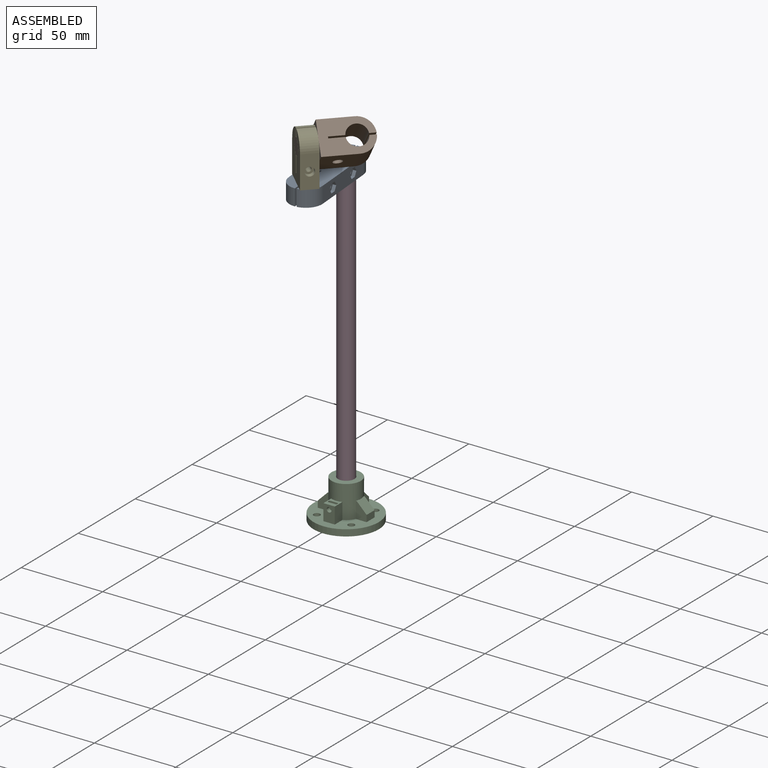
[diagram: assembled view]
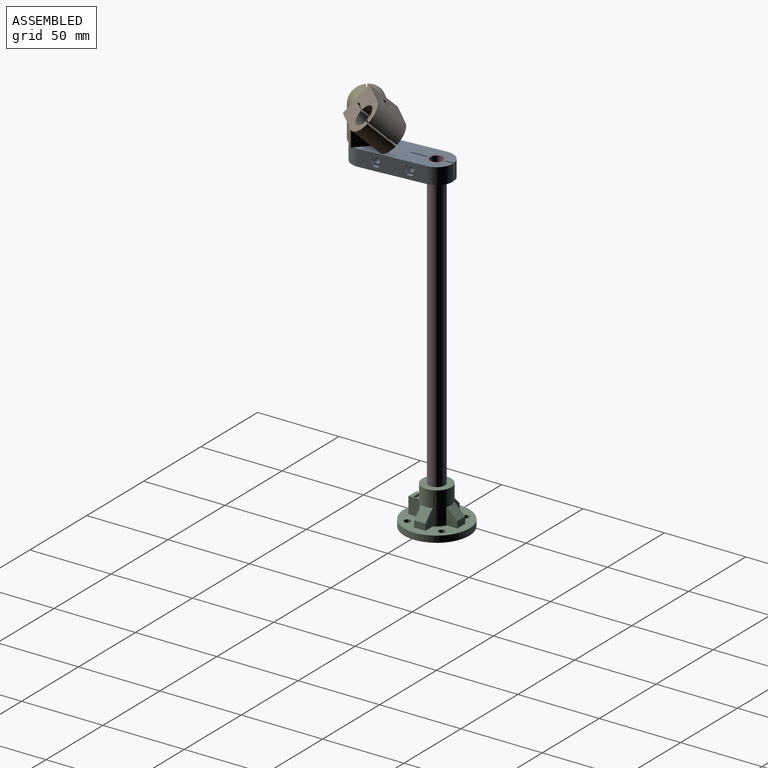
[diagram: assembled view, second angle]
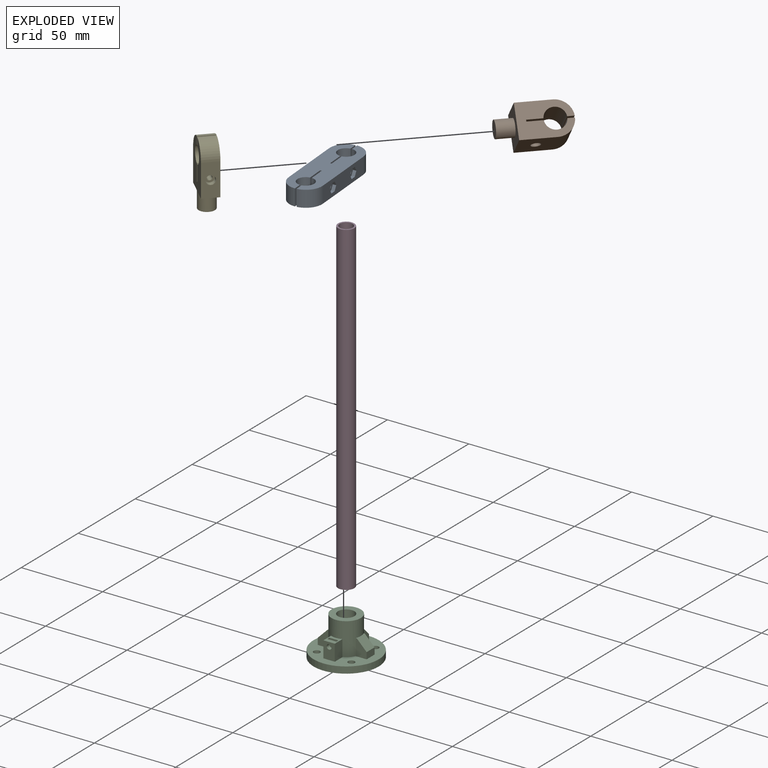
[diagram: exploded view]
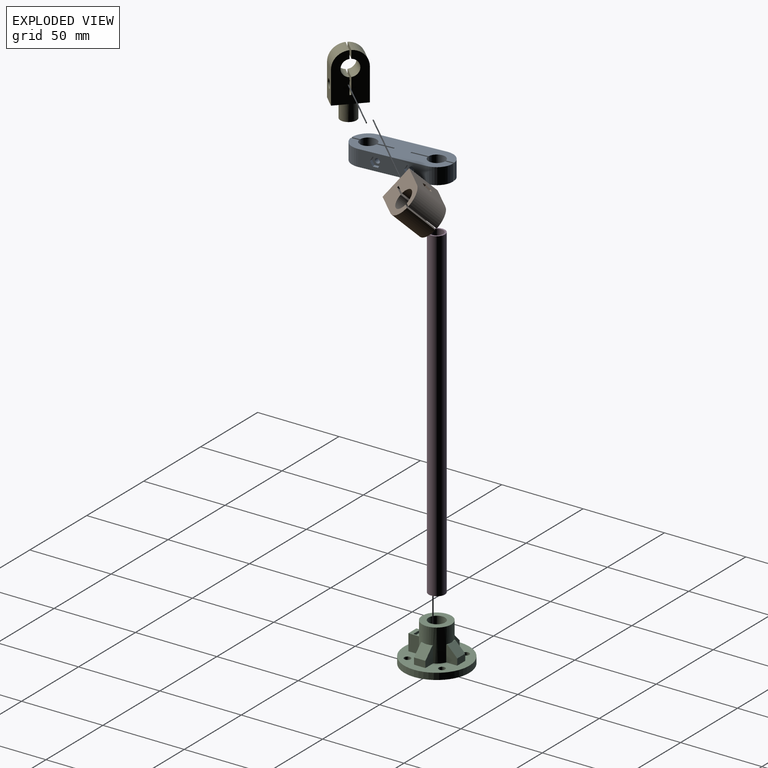
[diagram: exploded view, second angle]
ASSEMBLY  parts=5 mates=4
PART A: 44 faces, bbox 20x60x10 mm
  f0: plane 40x10mm, normal (-1,0,0), area 347.6mm2, adj f3,f9,f10,f14,f30,f31,f32,f33
  f1: cylinder r=1.5mm len=7.5mm, axis (1,0,0), area 70.7mm2, adj f21,f43
  f2: cylinder r=1.5mm len=7.56mm, axis (1,0,0), area 71.3mm2, adj f18,f36
  f3: cylinder r=10mm len=10mm, axis (0,0,-1), area 152.1mm2, adj f0,f9,f10,f24
  f4: cylinder r=10mm len=10mm, axis (0,0,-1), area 152.1mm2, adj f9,f10,f15,f23
  f5: cylinder r=5.1mm len=10.15mm, axis (0,0,-1), area 150.2mm2, adj f9,f10,f21,f24
  f6: cylinder r=5.1mm len=10.15mm, axis (0,0,-1), area 150.2mm2, adj f9,f10,f20,f25
  f7: cylinder r=5.1mm len=10.15mm, axis (0,0,-1), area 150.2mm2, adj f9,f10,f17,f23
  f8: cylinder r=5.1mm len=10.16mm, axis (0,0,-1), area 151.4mm2, adj f9,f10,f18,f22
  f9: plane 59.98x20mm, normal (0,0,1), area 921.8mm2, adj f0,f3,f4,f5,f6,f7,f8,f13
  f10: plane 59.98x20mm, normal (0,0,-1), area 921.8mm2, adj f0,f3,f4,f5,f6,f7,f8,f13
  f11: cylinder r=1.5mm len=6.5mm, axis (1,0,0), area 61.3mm2, adj f20,f27
  f12: cylinder r=1.5mm len=6.5mm, axis (1,0,0), area 61.3mm2, adj f17,f29
  f13: cylinder r=10mm len=10mm, axis (0,0,-1), area 152.1mm2, adj f9,f10,f15,f25
  f14: cylinder r=10mm len=10mm, axis (0,0,-1), area 152.7mm2, adj f0,f9,f10,f22
  f15: plane 40x10mm, normal (1,0,0), area 352.5mm2, adj f4,f9,f10,f13,f26,f28
  f16: plane 10x0.94mm, normal (0,-1,0), area 9.4mm2, adj f9,f10,f17,f18
  f17: plane 10.02x10mm, normal (-1,0,0), area 93.2mm2, adj f7,f9,f10,f12,f16
  f18: plane 10.02x10mm, normal (1,0,0), area 93.1mm2, adj f2,f8,f9,f10,f16
  f19: plane 10x1mm, normal (0,1,0), area 10mm2, adj f9,f10,f20,f21
  f20: plane 10.02x10mm, normal (-1,0,0), area 93.2mm2, adj f6,f9,f10,f11,f19
  f21: plane 10.02x10mm, normal (1,0,0), area 93.2mm2, adj f1,f5,f9,f10,f19
  f22: plane 10x4.91mm, normal (1,0,0), area 49.1mm2, adj f8,f9,f10,f14
  f23: plane 10x4.91mm, normal (-1,0,0), area 49.1mm2, adj f4,f7,f9,f10
  f24: plane 10x4.91mm, normal (1,0,0), area 49.1mm2, adj f3,f5,f9,f10
  f25: plane 10x4.91mm, normal (-1,0,0), area 49.1mm2, adj f6,f9,f10,f13
  f26: cylinder r=2.75mm len=5.5mm, axis (1,0,0), area 51.8mm2, adj f15,f27
  f27: plane 5.5x5.5mm, normal (1,0,0), area 16.7mm2, adj f11,f26
  f28: cylinder r=2.75mm len=5.5mm, axis (1,0,0), area 51.8mm2, adj f15,f29
  f29: plane 5.5x5.5mm, normal (1,0,0), area 16.7mm2, adj f12,f28
  f30: plane 2.75x2mm, normal (0,0.87,0.5), area 6.4mm2, adj f0,f31,f35,f36
  f31: plane 2.75x2mm, normal (0,0.87,-0.5), area 6.4mm2, adj f0,f30,f32,f36
  f32: plane 3.18x2mm, normal (0,0,-1), area 6.4mm2, adj f0,f31,f33,f36
  f33: plane 2.75x2mm, normal (0,-0.87,-0.5), area 6.4mm2, adj f0,f32,f34,f36
  f34: plane 2.75x2mm, normal (0,-0.87,0.5), area 6.4mm2, adj f0,f33,f35,f36
  f35: plane 3.18x2mm, normal (0,0,1), area 6.4mm2, adj f0,f30,f34,f36
  f36: plane 6.35x5.5mm, normal (-1,0,0), area 19.1mm2, adj f2,f30,f31,f32,f33,f34,f35
  f37: plane 2.75x2mm, normal (0,0.87,0.5), area 6.4mm2, adj f0,f38,f42,f43
  f38: plane 2.75x2mm, normal (0,0.87,-0.5), area 6.4mm2, adj f0,f37,f39,f43
  f39: plane 3.18x2mm, normal (0,0,-1), area 6.4mm2, adj f0,f38,f40,f43
  f40: plane 2.75x2mm, normal (0,-0.87,-0.5), area 6.4mm2, adj f0,f39,f41,f43
  f41: plane 2.75x2mm, normal (0,-0.87,0.5), area 6.4mm2, adj f0,f40,f42,f43
  f42: plane 3.18x2mm, normal (0,0,1), area 6.4mm2, adj f0,f37,f41,f43
  f43: plane 6.35x5.5mm, normal (-1,0,0), area 19.1mm2, adj f1,f37,f38,f39,f40,f41,f42
PART B: 27 faces, bbox 40x20x20 mm
  f0: plane 20x20mm, normal (0,0,-1), area 373.8mm2, adj f5,f6,f8,f9,f20,f21,f22,f23
  f1: cylinder r=10mm len=20mm, axis (0,1,0), area 304.2mm2, adj f4,f8,f9,f14
  f2: cylinder r=6.1mm len=20mm, axis (0,1,0), area 363.3mm2, adj f8,f9,f12,f14
  f3: cylinder r=1.5mm len=6.5mm, axis (0,0,1), area 61.3mm2, adj f12,f19
  f4: plane 20x20mm, normal (0,0,1), area 376.2mm2, adj f1,f6,f8,f9,f18
  f5: cylinder r=10mm len=20mm, axis (0,1,0), area 304.2mm2, adj f0,f8,f9,f15
  f6: plane 20x20mm, normal (1,0,0), area 321.5mm2, adj f0,f4,f8,f9,f16
  f7: cylinder r=6.1mm len=20mm, axis (0,1,0), area 363.3mm2, adj f8,f9,f11,f15
  f8: plane 29.99x20mm, normal (0,-1,0), area 427.4mm2, adj f0,f1,f2,f4,f5,f6,f7,f11
  f9: plane 29.99x20mm, normal (0,1,0), area 427.4mm2, adj f0,f1,f2,f4,f5,f6,f7,f11
  f10: cylinder r=1.5mm len=7.5mm, axis (0,0,1), area 70.7mm2, adj f11,f26
  f11: plane 20x8.92mm, normal (0,0,1), area 171.3mm2, adj f7,f8,f9,f10,f13
  f12: plane 20x8.92mm, normal (0,0,-1), area 171.3mm2, adj f2,f3,f8,f9,f13
  f13: plane 20x1mm, normal (-1,0,0), area 20mm2, adj f8,f9,f11,f12
  f14: plane 20x3.91mm, normal (0,0,-1), area 78.2mm2, adj f1,f2,f8,f9
  f15: plane 20x3.91mm, normal (0,0,1), area 78.2mm2, adj f5,f7,f8,f9
  f16: cylinder r=5mm len=10mm, axis (-1,0,0), area 314.2mm2, adj f6,f17
  f17: plane 10x10mm, normal (1,0,0), area 78.5mm2, adj f16
  f18: cylinder r=2.75mm len=5.5mm, axis (0,0,1), area 51.8mm2, adj f4,f19
  f19: plane 5.5x5.5mm, normal (0,0,1), area 16.7mm2, adj f3,f18
  f20: plane 2.75x2mm, normal (0.87,0.5,0), area 6.4mm2, adj f0,f21,f25,f26
  f21: plane 2.75x2mm, normal (0.87,-0.5,0), area 6.4mm2, adj f0,f20,f22,f26
  f22: plane 3.18x2mm, normal (0,-1,0), area 6.4mm2, adj f0,f21,f23,f26
  f23: plane 2.75x2mm, normal (-0.87,-0.5,0), area 6.4mm2, adj f0,f22,f24,f26
  f24: plane 2.75x2mm, normal (-0.87,0.5,0), area 6.4mm2, adj f0,f23,f25,f26
  f25: plane 3.18x2mm, normal (0,1,0), area 6.4mm2, adj f0,f20,f24,f26
  f26: plane 6.35x5.5mm, normal (0,0,-1), area 19.1mm2, adj f10,f20,f21,f22,f23,f24,f25
PART C: 40 faces, bbox 40x40x24 mm
  f0: plane 3.5x0.71mm, normal (0,0,1), area 0.8mm2, adj f3,f14,f35
  f1: plane 3.5x0.71mm, normal (0,0,1), area 0.8mm2, adj f3,f18,f34
  f2: plane 3.5x0.71mm, normal (0,0,1), area 0.8mm2, adj f3,f12,f33
  f3: cylinder r=9mm len=20mm, axis (0,0,-1), area 843.4mm2, adj f0,f1,f2,f4,f8,f11,f12,f13
  f4: plane 40x40mm, normal (0,0,1), area 777.4mm2, adj f3,f5,f10,f11,f12,f14,f15,f16
  f5: cylinder r=20mm len=40mm, axis (0,0,-1), area 502.7mm2, adj f4,f6
  f6: plane 40x40mm, normal (0,0,-1), area 1206.4mm2, adj f5,f36,f37,f38,f39
  f7: cylinder r=5.1mm len=20mm, axis (0,0,-1), area 633.7mm2, adj f8,f9,f31
  f8: plane 18x18mm, normal (0,0,1), area 172.8mm2, adj f3,f7
  f9: plane 10.2x10.2mm, normal (0,0,1), area 81.7mm2, adj f7
  f10: plane 7x4mm, normal (-1,0,0), area 28mm2, adj f4,f11,f12,f33
  f11: plane 10x6.71mm, normal (0,-1,0), area 49.1mm2, adj f3,f4,f10,f13,f33
  f12: plane 10x6.71mm, normal (0,1,0), area 49.1mm2, adj f2,f3,f4,f10,f33
  f13: plane 3.5x0.71mm, normal (0,0,1), area 0.8mm2, adj f3,f11,f33
  f14: plane 10x6.71mm, normal (0,-1,0), area 49.1mm2, adj f0,f3,f4,f15,f35
  f15: plane 7x4mm, normal (1,0,0), area 28mm2, adj f4,f14,f16,f35
  f16: plane 10x6.71mm, normal (0,1,0), area 49.1mm2, adj f3,f4,f15,f17,f35
  f17: plane 3.5x0.71mm, normal (0,0,1), area 0.8mm2, adj f3,f16,f35
  f18: plane 10x6.71mm, normal (1,0,0), area 49.1mm2, adj f1,f3,f4,f19,f34
  f19: plane 7x4mm, normal (0,1,0), area 28mm2, adj f4,f18,f20,f34
  f20: plane 10x6.71mm, normal (-1,0,0), area 49.1mm2, adj f3,f4,f19,f21,f34
  f21: plane 3.5x0.71mm, normal (0,0,1), area 0.8mm2, adj f3,f20,f34
  f22: plane 10x6.71mm, normal (1,0,0), area 67.1mm2, adj f3,f4,f24,f25
  f23: plane 10x6.71mm, normal (-1,0,0), area 67.1mm2, adj f3,f4,f24,f25
  f24: plane 10x7mm, normal (0,-1,0), area 62.9mm2, adj f4,f22,f23,f25,f32
  f25: plane 7x6.71mm, normal (0,0,1), area 33.7mm2, adj f3,f22,f23,f24,f26,f27,f28,f29
  f26: plane 5.5x1.8mm, normal (1,0,0), area 9.9mm2, adj f25,f27,f29,f30
  f27: plane 5.5x5.5mm, normal (0,1,0), area 23.2mm2, adj f25,f26,f28,f30,f32
  f28: plane 5.5x1.8mm, normal (-1,0,0), area 9.9mm2, adj f25,f27,f29,f30
  f29: plane 5.5x5.5mm, normal (0,-1,0), area 23.2mm2, adj f25,f26,f28,f30,f31
  f30: plane 5.5x1.8mm, normal (0,0,1), area 9.9mm2, adj f26,f27,f28,f29
  f31: cylinder r=1.5mm len=5.83mm, axis (0,-1,0), area 53.8mm2, adj f7,f29
  f32: cylinder r=1.5mm len=3mm, axis (0,-1,0), area 23.6mm2, adj f24,f27
  f33: plane 7x6mm, normal (-0.71,0,0.71), area 59.4mm2, adj f2,f10,f11,f12,f13
  f34: plane 7x6mm, normal (0,0.71,0.71), area 59.4mm2, adj f1,f18,f19,f20,f21
  f35: plane 7x6mm, normal (0.71,0,0.71), area 59.4mm2, adj f0,f14,f15,f16,f17
  f36: cylinder r=2mm len=4mm, axis (0,0,-1), area 50.3mm2, adj f4,f6
  f37: cylinder r=2mm len=4mm, axis (0,0,-1), area 50.3mm2, adj f4,f6
  f38: cylinder r=2mm len=4mm, axis (0,0,-1), area 50.3mm2, adj f4,f6
  f39: cylinder r=2mm len=4mm, axis (0,0,-1), area 50.3mm2, adj f4,f6
PART D: 4 faces, bbox 10x10x200 mm
  f0: cylinder r=4mm len=200mm, axis (0,0,-1), area 5026.5mm2, adj f2,f3
  f1: cylinder r=5mm len=200mm, axis (0,0,-1), area 6283.2mm2, adj f2,f3
  f2: plane 10x10mm, normal (0,0,1), area 28.3mm2, adj f0,f1
  f3: plane 10x10mm, normal (0,0,-1), area 28.3mm2, adj f0,f1
PART E: 28 faces, bbox 20x10x40 mm
  f0: plane 20x10mm, normal (-1,0,0), area 173.8mm2, adj f3,f6,f7,f8,f21,f22,f23,f24
  f1: cylinder r=1.5mm len=6.5mm, axis (-1,0,0), area 61.3mm2, adj f12,f20
  f2: plane 20x10mm, normal (1,0,0), area 176.2mm2, adj f4,f6,f7,f9,f19
  f3: plane 10x10mm, normal (0,0,-1), area 60.7mm2, adj f0,f6,f7,f17
  f4: cylinder r=10mm len=10mm, axis (0,1,0), area 152.1mm2, adj f2,f6,f7,f16
  f5: cylinder r=5.1mm len=10.15mm, axis (0,1,0), area 150.2mm2, adj f6,f7,f12,f16
  f6: plane 29.99x20mm, normal (0,-1,0), area 460.6mm2, adj f0,f2,f3,f4,f5,f8,f9,f10
  f7: plane 29.99x20mm, normal (0,1,0), area 460.6mm2, adj f0,f2,f3,f4,f5,f8,f9,f10
  f8: cylinder r=10mm len=10mm, axis (0,1,0), area 152.1mm2, adj f0,f6,f7,f15
  f9: plane 10x10mm, normal (0,0,-1), area 60.7mm2, adj f2,f6,f7,f17
  f10: cylinder r=5.1mm len=10.15mm, axis (0,1,0), area 150.2mm2, adj f6,f7,f13,f15
  f11: cylinder r=1.5mm len=7.5mm, axis (-1,0,0), area 70.7mm2, adj f13,f27
  f12: plane 10x9.92mm, normal (-1,0,0), area 92.2mm2, adj f1,f5,f6,f7,f14
  f13: plane 10x9.92mm, normal (1,0,0), area 92.2mm2, adj f6,f7,f10,f11,f14
  f14: plane 10x1mm, normal (0,0,1), area 10mm2, adj f6,f7,f12,f13
  f15: plane 10x4.91mm, normal (1,0,0), area 49.1mm2, adj f6,f7,f8,f10
  f16: plane 10x4.91mm, normal (-1,0,0), area 49.1mm2, adj f4,f5,f6,f7
  f17: cylinder r=5mm len=10mm, axis (0,0,1), area 314.2mm2, adj f3,f9,f18
  f18: plane 10x10mm, normal (0,0,-1), area 78.5mm2, adj f17
  f19: cylinder r=2.75mm len=5.5mm, axis (1,0,0), area 51.8mm2, adj f2,f20
  f20: plane 5.5x5.5mm, normal (1,0,0), area 16.7mm2, adj f1,f19
  f21: plane 2.75x2mm, normal (0,0.5,-0.87), area 6.4mm2, adj f0,f22,f26,f27
  f22: plane 2.75x2mm, normal (0,-0.5,-0.87), area 6.4mm2, adj f0,f21,f23,f27
  f23: plane 3.18x2mm, normal (0,-1,0), area 6.4mm2, adj f0,f22,f24,f27
  f24: plane 2.75x2mm, normal (0,-0.5,0.87), area 6.4mm2, adj f0,f23,f25,f27
  f25: plane 2.75x2mm, normal (0,0.5,0.87), area 6.4mm2, adj f0,f24,f26,f27
  f26: plane 3.18x2mm, normal (0,1,0), area 6.4mm2, adj f0,f21,f25,f27
  f27: plane 6.35x5.5mm, normal (-1,0,0), area 19.1mm2, adj f11,f21,f22,f23,f24,f25,f26
PLACE A rot(axis=(0,0,-1),175.5deg) t=(2.84,-39.88,191.35)mm
PLACE B rot(axis=(-0.37,0.86,-0.34),163.4deg) t=(14.81,-16.75,214.52)mm
PLACE C t=(-0.28,0,-2.65)mm fixed
PLACE D t=(-0.28,0,1.35)mm
PLACE E rot(axis=(0,0,-1),43.6deg) t=(6.29,-36.26,221.35)mm
MATE revolute B.f16 <-> E.f5  axis (-0.69,-0.72,0) through (-0.61,-43.5,221.35)mm
MATE revolute E.f17 <-> A.f5  axis (0,0,-1) through (2.84,-39.88,191.35)mm
MATE revolute A.f4 <-> D.f1  axis (0,0,-1) through (-0.28,0,201.35)mm
MATE fastened D.f1 <-> C.f3  axis (0,0,-1) through (-0.28,0,1.35)mm
